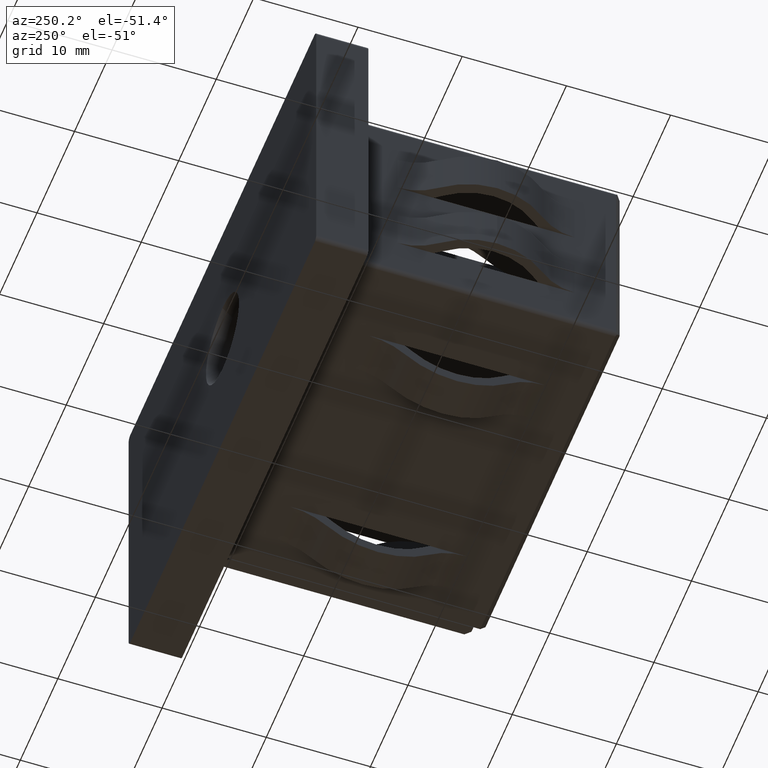
[diagram: clean part render]
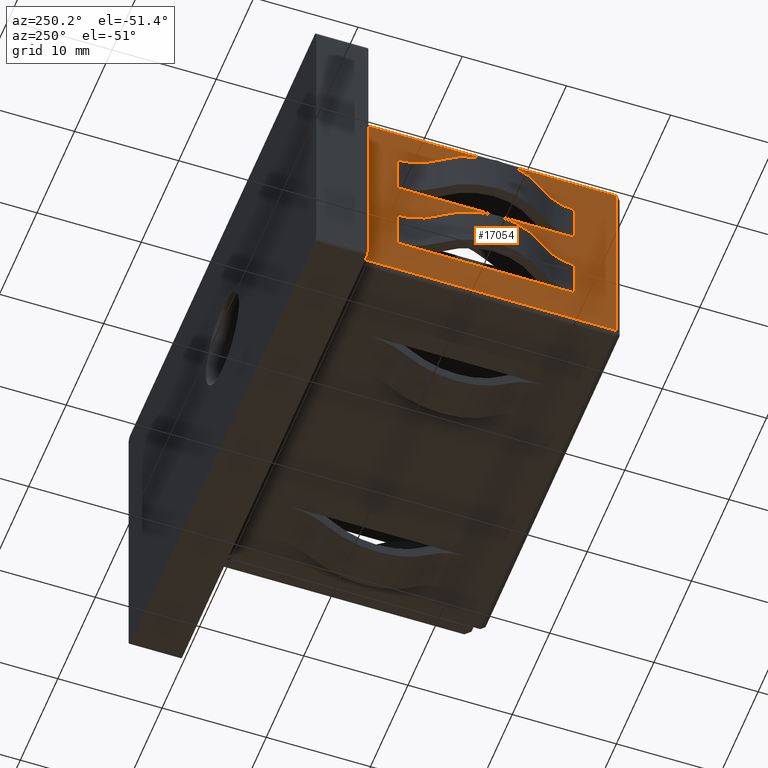
[diagram: same view with one face highlighted and labeled with its STEP entity id]
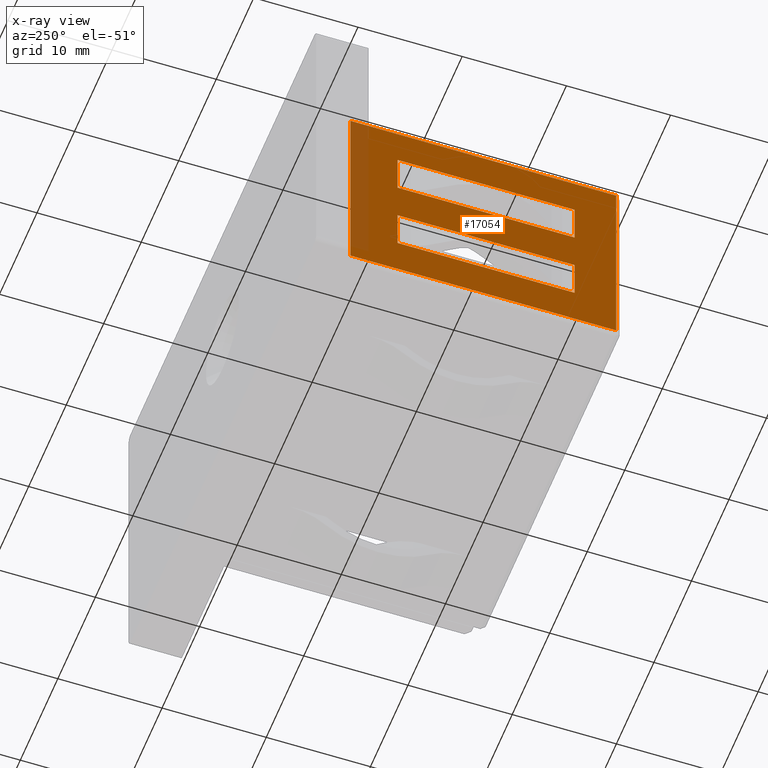
[diagram: x-ray of the same camera — body ghosted, the highlighted face saturated]
A machine part, auxiliary view. The second image highlights one B-rep face of the part: STEP entity #17054.
The next image is the same camera in x-ray: the body ghosted, the highlighted face saturated — about 9% of this face is hidden behind the body in this view.
In plain terms, the highlighted planar face has unit normal (1, 0, 0).
Its self-contained STEP definition (entity closure, byte-faithful):
#8 = LINE ( 'NONE', #575, #16320 ) ;
#160 = CARTESIAN_POINT ( 'NONE',  ( -20.24999999999519700, -21.50000000000000000, -1.999999999999998200 ) ) ;
#177 = ORIENTED_EDGE ( 'NONE', *, *, #14061, .T. ) ;
#189 = ORIENTED_EDGE ( 'NONE', *, *, #9830, .F. ) ;
#575 = CARTESIAN_POINT ( 'NONE',  ( -20.24999999999999600, -26.00000000000000000, 2.000000000000001800 ) ) ;
#581 = CARTESIAN_POINT ( 'NONE',  ( -20.24999999999999600, -26.00000000000000000, -5.999999999999998200 ) ) ;
#595 = ORIENTED_EDGE ( 'NONE', *, *, #17291, .T. ) ;
#1067 = DIRECTION ( 'NONE',  ( 0.0000000000000000000, -1.000000000000000000, 0.0000000000000000000 ) ) ;
#1121 = DIRECTION ( 'NONE',  ( 0.0000000000000000000, 0.0000000000000000000, 1.000000000000000000 ) ) ;
#1418 = CARTESIAN_POINT ( 'NONE',  ( -20.24999999999999600, -26.00000000000000000, 2.000000000000001800 ) ) ;
#1703 = DIRECTION ( 'NONE',  ( 0.0000000000000000000, -1.000000000000000000, 0.0000000000000000000 ) ) ;
#1734 = EDGE_CURVE ( 'NONE', #4559, #10308, #11434, .T. ) ;
#1826 = VERTEX_POINT ( 'NONE', #17305 ) ;
#1871 = CARTESIAN_POINT ( 'NONE',  ( -20.24999999999519700, -21.50000000000000000, 2.000000000000000900 ) ) ;
#1955 = CARTESIAN_POINT ( 'NONE',  ( -20.24999999999999600, -26.00000000000000000, 2.000000000000001800 ) ) ;
#2091 = CARTESIAN_POINT ( 'NONE',  ( -20.24999999999999600, -21.50000000000000400, 6.000000000000000900 ) ) ;
#2159 = ORIENTED_EDGE ( 'NONE', *, *, #7865, .T. ) ;
#2241 = CARTESIAN_POINT ( 'NONE',  ( -20.24999999999759500, -21.49999992292214700, 2.000000000000000900 ) ) ;
#2284 = EDGE_LOOP ( 'NONE', ( #189, #11431, #2483, #10937, #177, #15486, #16174, #12888 ) ) ;
#2372 = FACE_BOUND ( 'NONE', #2284, .T. ) ;
#2483 = ORIENTED_EDGE ( 'NONE', *, *, #4831, .T. ) ;
#2566 = EDGE_CURVE ( 'NONE', #10411, #5307, #10307, .T. ) ;
#2624 = CARTESIAN_POINT ( 'NONE',  ( -20.24999999999519700, -4.499999999999995600, 2.000000000000000900 ) ) ;
#3067 = CARTESIAN_POINT ( 'NONE',  ( -20.24999999999999600, -7.985966293206501200, -1.999999999999998700 ) ) ;
#3122 = CARTESIAN_POINT ( 'NONE',  ( -20.24999999999999600, -7.985966293206501200, 6.000000000000001800 ) ) ;
#3161 = CARTESIAN_POINT ( 'NONE',  ( -20.24999999999999600, -18.01403370679349400, -5.999999999999998200 ) ) ;
#3192 = CARTESIAN_POINT ( 'NONE',  ( -20.24999999999999600, -26.00000000000000000, 9.749999999999994700 ) ) ;
#3199 = LINE ( 'NONE', #581, #10463 ) ;
#3651 = EDGE_CURVE ( 'NONE', #13899, #4184, #10683, .T. ) ;
#3744 = LINE ( 'NONE', #7194, #7270 ) ;
#4184 = VERTEX_POINT ( 'NONE', #2091 ) ;
#4317 = CARTESIAN_POINT ( 'NONE',  ( -20.24999999999759500, -4.500000077077848100, -1.999999999999998700 ) ) ;
#4378 = DIRECTION ( 'NONE',  ( 0.0000000000000000000, 0.0000000000000000000, -1.000000000000000000 ) ) ;
#4400 = DIRECTION ( 'NONE',  ( -6.424901762877059800E-017, -0.0000000000000000000, -1.000000000000000000 ) ) ;
#4473 = DIRECTION ( 'NONE',  ( 0.0000000000000000000, -1.000000000000000000, 0.0000000000000000000 ) ) ;
#4529 = EDGE_CURVE ( 'NONE', #6044, #9239, #5164, .T. ) ;
#4559 = VERTEX_POINT ( 'NONE', #11600 ) ;
#4632 = DIRECTION ( 'NONE',  ( 6.424901762877059800E-017, -0.0000000000000000000, 1.000000000000000000 ) ) ;
#4660 = CARTESIAN_POINT ( 'NONE',  ( -20.24999999999999600, -26.00000000000000000, -5.999999999999998200 ) ) ;
#4699 = CARTESIAN_POINT ( 'NONE',  ( -20.24999999999999600, -7.985966293206501200, -5.999999999999998200 ) ) ;
#4831 = EDGE_CURVE ( 'NONE', #7382, #6044, #11549, .T. ) ;
#4836 = CARTESIAN_POINT ( 'NONE',  ( -20.24999999999519700, -4.499999999999995600, 6.000000000000000900 ) ) ;
#4989 = DIRECTION ( 'NONE',  ( 0.0000000000000000000, -0.0000000000000000000, -1.000000000000000000 ) ) ;
#5164 = LINE ( 'NONE', #7189, #9345 ) ;
#5255 = VECTOR ( 'NONE', #15434, 1000.000000000000000 ) ;
#5307 = VERTEX_POINT ( 'NONE', #4699 ) ;
#5423 = CARTESIAN_POINT ( 'NONE',  ( -20.24999999999999600, -18.01403370679349400, 2.000000000000001300 ) ) ;
#5582 = CARTESIAN_POINT ( 'NONE',  ( -20.24999999999999600, -26.00000000000000000, 6.000000000000000900 ) ) ;
#5789 = VERTEX_POINT ( 'NONE', #5423 ) ;
#5793 = EDGE_CURVE ( 'NONE', #5789, #17103, #10860, .T. ) ;
#5990 = VERTEX_POINT ( 'NONE', #6379 ) ;
#6044 = VERTEX_POINT ( 'NONE', #8066 ) ;
#6229 = VECTOR ( 'NONE', #7238, 1000.000000000000000 ) ;
#6379 = CARTESIAN_POINT ( 'NONE',  ( -20.24999999999999600, 0.0000000000000000000, 9.749999999999994700 ) ) ;
#6440 = LINE ( 'NONE', #16564, #15465 ) ;
#6554 = VECTOR ( 'NONE', #9457, 1000.000000000000000 ) ;
#6619 = CARTESIAN_POINT ( 'NONE',  ( -20.24999999999999600, -26.00000000000000000, -5.999999999999998200 ) ) ;
#6657 = VERTEX_POINT ( 'NONE', #3161 ) ;
#6671 = CARTESIAN_POINT ( 'NONE',  ( -20.24999999999999600, -26.00000000000000000, -1.999999999999998200 ) ) ;
#6678 = VECTOR ( 'NONE', #1121, 1000.000000000000000 ) ;
#6807 = VECTOR ( 'NONE', #7450, 1000.000000000000000 ) ;
#6877 = CARTESIAN_POINT ( 'NONE',  ( -20.24999999999999600, -25.50000000000000000, -9.749999999999994700 ) ) ;
#7189 = CARTESIAN_POINT ( 'NONE',  ( -20.24999999999999600, -26.00000000000000000, -1.999999999999998200 ) ) ;
#7194 = CARTESIAN_POINT ( 'NONE',  ( -20.24999999999999600, -26.00000000000000000, 6.000000000000000900 ) ) ;
#7238 = DIRECTION ( 'NONE',  ( 0.0000000000000000000, 1.000000000000000000, 0.0000000000000000000 ) ) ;
#7270 = VECTOR ( 'NONE', #13956, 1000.000000000000000 ) ;
#7379 = LINE ( 'NONE', #160, #17714 ) ;
#7382 = VERTEX_POINT ( 'NONE', #3067 ) ;
#7450 = DIRECTION ( 'NONE',  ( -0.0000000000000000000, 1.000000000000000000, 0.0000000000000000000 ) ) ;
#7865 = EDGE_CURVE ( 'NONE', #13899, #5789, #8, .T. ) ;
#8058 = EDGE_CURVE ( 'NONE', #10157, #10308, #3744, .T. ) ;
#8066 = CARTESIAN_POINT ( 'NONE',  ( -20.24999999999999600, -18.01403370679349400, -1.999999999999998700 ) ) ;
#8279 = VECTOR ( 'NONE', #4632, 1000.000000000000000 ) ;
#8362 = CARTESIAN_POINT ( 'NONE',  ( -20.24999999999999600, -21.50000000000000000, -1.999999999999998200 ) ) ;
#8460 = LINE ( 'NONE', #13242, #16149 ) ;
#8482 = VECTOR ( 'NONE', #11856, 1000.000000000000000 ) ;
#8922 = ORIENTED_EDGE ( 'NONE', *, *, #11846, .F. ) ;
#8949 = DIRECTION ( 'NONE',  ( 0.0000000000000000000, -1.000000000000000000, 0.0000000000000000000 ) ) ;
#9177 = CARTESIAN_POINT ( 'NONE',  ( -20.24999999999999600, 0.0000000000000000000, 10.24999999999999500 ) ) ;
#9239 = VERTEX_POINT ( 'NONE', #8362 ) ;
#9345 = VECTOR ( 'NONE', #1703, 1000.000000000000000 ) ;
#9424 = FACE_BOUND ( 'NONE', #10654, .T. ) ;
#9457 = DIRECTION ( 'NONE',  ( 0.0000000000000000000, -1.000000000000000000, 0.0000000000000000000 ) ) ;
#9469 = CARTESIAN_POINT ( 'NONE',  ( -20.24999999999519700, -21.50000000000000000, -5.999999999999998200 ) ) ;
#9563 = LINE ( 'NONE', #1955, #8482 ) ;
#9723 = EDGE_CURVE ( 'NONE', #6657, #9951, #12440, .T. ) ;
#9830 = EDGE_CURVE ( 'NONE', #11640, #10411, #11777, .T. ) ;
#9871 = FACE_OUTER_BOUND ( 'NONE', #9972, .T. ) ;
#9951 = VERTEX_POINT ( 'NONE', #9469 ) ;
#9972 = EDGE_LOOP ( 'NONE', ( #595, #10140, #11329, #11317 ) ) ;
#10016 = VERTEX_POINT ( 'NONE', #6877 ) ;
#10140 = ORIENTED_EDGE ( 'NONE', *, *, #16333, .T. ) ;
#10157 = VERTEX_POINT ( 'NONE', #3122 ) ;
#10272 = CARTESIAN_POINT ( 'NONE',  ( -20.24999999999519700, -4.499999999999995600, -1.999999999999998200 ) ) ;
#10285 = LINE ( 'NONE', #9177, #17136 ) ;
#10307 = LINE ( 'NONE', #6619, #6554 ) ;
#10308 = VERTEX_POINT ( 'NONE', #4836 ) ;
#10349 = ORIENTED_EDGE ( 'NONE', *, *, #5793, .T. ) ;
#10369 = AXIS2_PLACEMENT_3D ( 'NONE', #14412, #11636, #4378 ) ;
#10411 = VERTEX_POINT ( 'NONE', #14065 ) ;
#10422 = LINE ( 'NONE', #12496, #6678 ) ;
#10427 = DIRECTION ( 'NONE',  ( 0.0000000000000000000, 1.000000000000000000, 0.0000000000000000000 ) ) ;
#10463 = VECTOR ( 'NONE', #16029, 1000.000000000000000 ) ;
#10504 = DIRECTION ( 'NONE',  ( -6.424901762877059800E-017, -0.0000000000000000000, -1.000000000000000000 ) ) ;
#10522 = ORIENTED_EDGE ( 'NONE', *, *, #1734, .T. ) ;
#10654 = EDGE_LOOP ( 'NONE', ( #14359, #2159, #10349, #16851, #10522, #12318, #8922, #14812 ) ) ;
#10683 = LINE ( 'NONE', #1871, #8279 ) ;
#10733 = EDGE_CURVE ( 'NONE', #17103, #4559, #9563, .T. ) ;
#10860 = LINE ( 'NONE', #1418, #11945 ) ;
#10937 = ORIENTED_EDGE ( 'NONE', *, *, #4529, .T. ) ;
#11157 = EDGE_CURVE ( 'NONE', #4184, #1826, #13957, .T. ) ;
#11317 = ORIENTED_EDGE ( 'NONE', *, *, #15864, .T. ) ;
#11329 = ORIENTED_EDGE ( 'NONE', *, *, #11569, .T. ) ;
#11376 = EDGE_CURVE ( 'NONE', #11640, #7382, #8460, .T. ) ;
#11409 = PLANE ( 'NONE',  #10369 ) ;
#11431 = ORIENTED_EDGE ( 'NONE', *, *, #11376, .T. ) ;
#11434 = LINE ( 'NONE', #2624, #14293 ) ;
#11549 = LINE ( 'NONE', #6671, #14852 ) ;
#11569 = EDGE_CURVE ( 'NONE', #10016, #15950, #10422, .T. ) ;
#11600 = CARTESIAN_POINT ( 'NONE',  ( -20.24999999999999600, -4.499999999999997300, 2.000000000000000000 ) ) ;
#11636 = DIRECTION ( 'NONE',  ( 1.000000000000000000, 0.0000000000000000000, 0.0000000000000000000 ) ) ;
#11640 = VERTEX_POINT ( 'NONE', #4317 ) ;
#11777 = LINE ( 'NONE', #10272, #14633 ) ;
#11846 = EDGE_CURVE ( 'NONE', #1826, #10157, #6440, .T. ) ;
#11856 = DIRECTION ( 'NONE',  ( 0.0000000000000000000, 1.000000000000000000, 0.0000000000000000000 ) ) ;
#11945 = VECTOR ( 'NONE', #16752, 1000.000000000000000 ) ;
#12004 = VECTOR ( 'NONE', #4473, 1000.000000000000000 ) ;
#12203 = CARTESIAN_POINT ( 'NONE',  ( -20.24999999999999600, 0.0000000000000000000, -9.749999999999994700 ) ) ;
#12318 = ORIENTED_EDGE ( 'NONE', *, *, #8058, .F. ) ;
#12440 = LINE ( 'NONE', #4660, #12004 ) ;
#12496 = CARTESIAN_POINT ( 'NONE',  ( -20.24999999999999600, -25.50000000000000000, 10.24999999999999500 ) ) ;
#12667 = CARTESIAN_POINT ( 'NONE',  ( -20.24999999999999600, -26.00000000000000000, -9.749999999999994700 ) ) ;
#12700 = VERTEX_POINT ( 'NONE', #12203 ) ;
#12888 = ORIENTED_EDGE ( 'NONE', *, *, #2566, .F. ) ;
#13242 = CARTESIAN_POINT ( 'NONE',  ( -20.24999999999999600, -26.00000000000000000, -1.999999999999998200 ) ) ;
#13584 = DIRECTION ( 'NONE',  ( 0.0000000000000000000, 1.000000000000000000, 0.0000000000000000000 ) ) ;
#13882 = DIRECTION ( 'NONE',  ( 6.424901762877059800E-017, -0.0000000000000000000, 1.000000000000000000 ) ) ;
#13899 = VERTEX_POINT ( 'NONE', #2241 ) ;
#13956 = DIRECTION ( 'NONE',  ( 0.0000000000000000000, 1.000000000000000000, 0.0000000000000000000 ) ) ;
#13957 = LINE ( 'NONE', #5582, #6229 ) ;
#14061 = EDGE_CURVE ( 'NONE', #9239, #9951, #7379, .T. ) ;
#14065 = CARTESIAN_POINT ( 'NONE',  ( -20.24999999999999600, -4.499999999999997300, -5.999999999999998200 ) ) ;
#14293 = VECTOR ( 'NONE', #13882, 1000.000000000000000 ) ;
#14359 = ORIENTED_EDGE ( 'NONE', *, *, #3651, .F. ) ;
#14412 = CARTESIAN_POINT ( 'NONE',  ( -20.24999999999999600, -26.00000000000000000, 10.24999999999999500 ) ) ;
#14633 = VECTOR ( 'NONE', #10504, 1000.000000000000000 ) ;
#14812 = ORIENTED_EDGE ( 'NONE', *, *, #11157, .F. ) ;
#14852 = VECTOR ( 'NONE', #1067, 1000.000000000000000 ) ;
#14971 = EDGE_CURVE ( 'NONE', #5307, #6657, #3199, .T. ) ;
#15434 = DIRECTION ( 'NONE',  ( 0.0000000000000000000, -1.000000000000000000, -0.0000000000000000000 ) ) ;
#15465 = VECTOR ( 'NONE', #13584, 1000.000000000000000 ) ;
#15486 = ORIENTED_EDGE ( 'NONE', *, *, #9723, .F. ) ;
#15864 = EDGE_CURVE ( 'NONE', #15950, #5990, #17594, .T. ) ;
#15950 = VERTEX_POINT ( 'NONE', #16559 ) ;
#16029 = DIRECTION ( 'NONE',  ( 0.0000000000000000000, -1.000000000000000000, 0.0000000000000000000 ) ) ;
#16149 = VECTOR ( 'NONE', #8949, 1000.000000000000000 ) ;
#16174 = ORIENTED_EDGE ( 'NONE', *, *, #14971, .F. ) ;
#16320 = VECTOR ( 'NONE', #10427, 1000.000000000000000 ) ;
#16333 = EDGE_CURVE ( 'NONE', #12700, #10016, #18010, .T. ) ;
#16559 = CARTESIAN_POINT ( 'NONE',  ( -20.24999999999999600, -25.50000000000000000, 9.749999999999994700 ) ) ;
#16564 = CARTESIAN_POINT ( 'NONE',  ( -20.24999999999999600, -26.00000000000000000, 6.000000000000000900 ) ) ;
#16752 = DIRECTION ( 'NONE',  ( 0.0000000000000000000, 1.000000000000000000, 0.0000000000000000000 ) ) ;
#16851 = ORIENTED_EDGE ( 'NONE', *, *, #10733, .T. ) ;
#17054 = ADVANCED_FACE ( 'NONE', ( #9424, #9871, #2372 ), #11409, .F. ) ;
#17103 = VERTEX_POINT ( 'NONE', #17312 ) ;
#17136 = VECTOR ( 'NONE', #4989, 1000.000000000000000 ) ;
#17291 = EDGE_CURVE ( 'NONE', #5990, #12700, #10285, .T. ) ;
#17305 = CARTESIAN_POINT ( 'NONE',  ( -20.24999999999999600, -18.01403370679349400, 6.000000000000001800 ) ) ;
#17312 = CARTESIAN_POINT ( 'NONE',  ( -20.24999999999999600, -7.985966293206501200, 2.000000000000001300 ) ) ;
#17594 = LINE ( 'NONE', #3192, #6807 ) ;
#17714 = VECTOR ( 'NONE', #4400, 1000.000000000000000 ) ;
#18010 = LINE ( 'NONE', #12667, #5255 ) ;